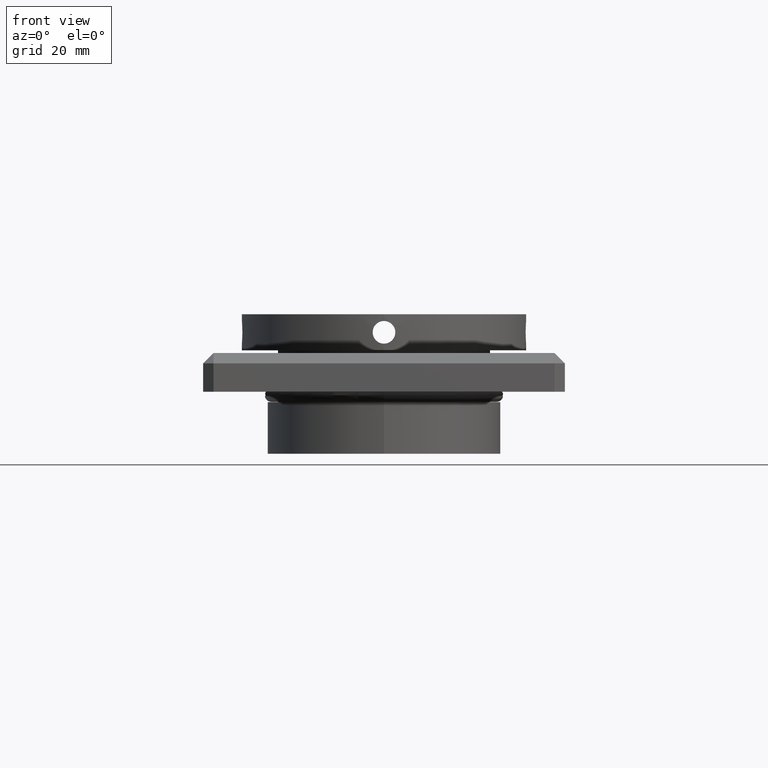
[diagram: clean part render]
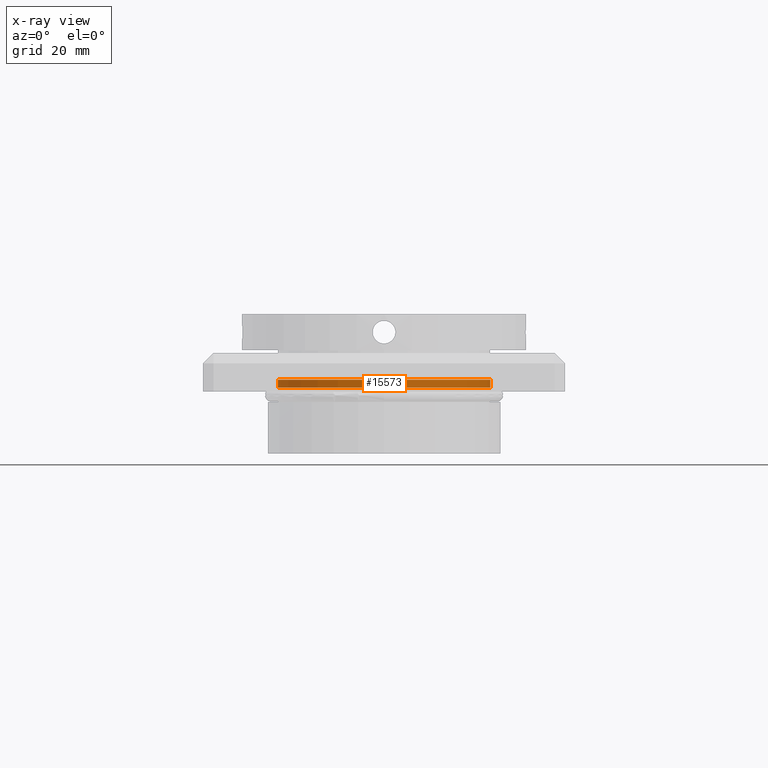
[diagram: x-ray — body ghosted, one internal face saturated and labeled with its STEP entity id]
A machine part, front view, then the same camera in x-ray: the body is ghosted and one INTERNAL B-rep face — a face not visible from any outside direction — is saturated and labeled: STEP entity #15573.
In plain terms, the highlighted cylindrical surface (partial cylindrical patch) has radius 20.55 mm, axis along (-0, -0, -1).
Its self-contained STEP definition (entity closure, byte-faithful):
#1218 = DIRECTION ( 'NONE',  ( 1.000000000000000000, 0.000000000000000000, 0.000000000000000000 ) ) ;
#1340 = AXIS2_PLACEMENT_3D ( 'NONE', #9843, #11144, #9728 ) ;
#2107 = VECTOR ( 'NONE', #12448, 1000.000000000000000 ) ;
#2137 = CIRCLE ( 'NONE', #6776, 20.55000000000000426 ) ;
#3291 = VERTEX_POINT ( 'NONE', #16789 ) ;
#3680 = LINE ( 'NONE', #11130, #2107 ) ;
#3852 = CARTESIAN_POINT ( 'NONE',  ( -20.55000000000000426, -4.592425496802569288E-17, -0.7000000000000025091 ) ) ;
#4042 = CARTESIAN_POINT ( 'NONE',  ( 20.55000000000000426, 2.470724917279785874E-15, 0.7999999999999974909 ) ) ;
#4085 = CYLINDRICAL_SURFACE ( 'NONE', #8948, 20.55000000000000426 ) ;
#5178 = DIRECTION ( 'NONE',  ( -1.000000000000000000, 0.000000000000000000, 0.000000000000000000 ) ) ;
#5565 = CARTESIAN_POINT ( 'NONE',  ( -20.55000000000000426, -4.592425496802569288E-17, 0.7999999999999974909 ) ) ;
#6479 = DIRECTION ( 'NONE',  ( -0.000000000000000000, -0.000000000000000000, -1.000000000000000000 ) ) ;
#6486 = VERTEX_POINT ( 'NONE', #17642 ) ;
#6638 = VERTEX_POINT ( 'NONE', #4042 ) ;
#6669 = EDGE_CURVE ( 'NONE', #3291, #8468, #2137, .T. ) ;
#6776 = AXIS2_PLACEMENT_3D ( 'NONE', #12526, #18206, #1218 ) ;
#7875 = ORIENTED_EDGE ( 'NONE', *, *, #6669, .T. ) ;
#8351 = DIRECTION ( 'NONE',  ( -0.000000000000000000, -0.000000000000000000, -1.000000000000000000 ) ) ;
#8468 = VERTEX_POINT ( 'NONE', #3852 ) ;
#8841 = ORIENTED_EDGE ( 'NONE', *, *, #14542, .F. ) ;
#8948 = AXIS2_PLACEMENT_3D ( 'NONE', #10723, #6479, #5178 ) ;
#8959 = LINE ( 'NONE', #5565, #10085 ) ;
#9541 = EDGE_LOOP ( 'NONE', ( #17834, #13885, #7875, #8841 ) ) ;
#9728 = DIRECTION ( 'NONE',  ( 1.000000000000000000, 0.000000000000000000, 0.000000000000000000 ) ) ;
#9843 = CARTESIAN_POINT ( 'NONE',  ( 0.000000000000000000, -4.592425496802569288E-17, 0.7999999999999974909 ) ) ;
#10085 = VECTOR ( 'NONE', #8351, 1000.000000000000000 ) ;
#10723 = CARTESIAN_POINT ( 'NONE',  ( 0.000000000000000000, -4.592425496802569288E-17, 0.7999999999999974909 ) ) ;
#11130 = CARTESIAN_POINT ( 'NONE',  ( 20.55000000000000426, 2.470724917279785874E-15, 0.7999999999999974909 ) ) ;
#11144 = DIRECTION ( 'NONE',  ( -0.000000000000000000, -0.000000000000000000, -1.000000000000000000 ) ) ;
#12448 = DIRECTION ( 'NONE',  ( -0.000000000000000000, -0.000000000000000000, -1.000000000000000000 ) ) ;
#12526 = CARTESIAN_POINT ( 'NONE',  ( 0.000000000000000000, -4.592425496802569288E-17, -0.7000000000000025091 ) ) ;
#13397 = FACE_OUTER_BOUND ( 'NONE', #9541, .T. ) ;
#13858 = CIRCLE ( 'NONE', #1340, 20.55000000000000426 ) ;
#13885 = ORIENTED_EDGE ( 'NONE', *, *, #17625, .T. ) ;
#14542 = EDGE_CURVE ( 'NONE', #6486, #8468, #8959, .T. ) ;
#15239 = EDGE_CURVE ( 'NONE', #6638, #6486, #13858, .T. ) ;
#15573 = ADVANCED_FACE ( 'NONE', ( #13397 ), #4085, .F. ) ;
#16789 = CARTESIAN_POINT ( 'NONE',  ( 20.55000000000000426, 2.470724917279785874E-15, -0.7000000000000025091 ) ) ;
#17625 = EDGE_CURVE ( 'NONE', #6638, #3291, #3680, .T. ) ;
#17642 = CARTESIAN_POINT ( 'NONE',  ( -20.55000000000000426, -4.592425496802569288E-17, 0.7999999999999974909 ) ) ;
#17834 = ORIENTED_EDGE ( 'NONE', *, *, #15239, .F. ) ;
#18206 = DIRECTION ( 'NONE',  ( -0.000000000000000000, -0.000000000000000000, -1.000000000000000000 ) ) ;